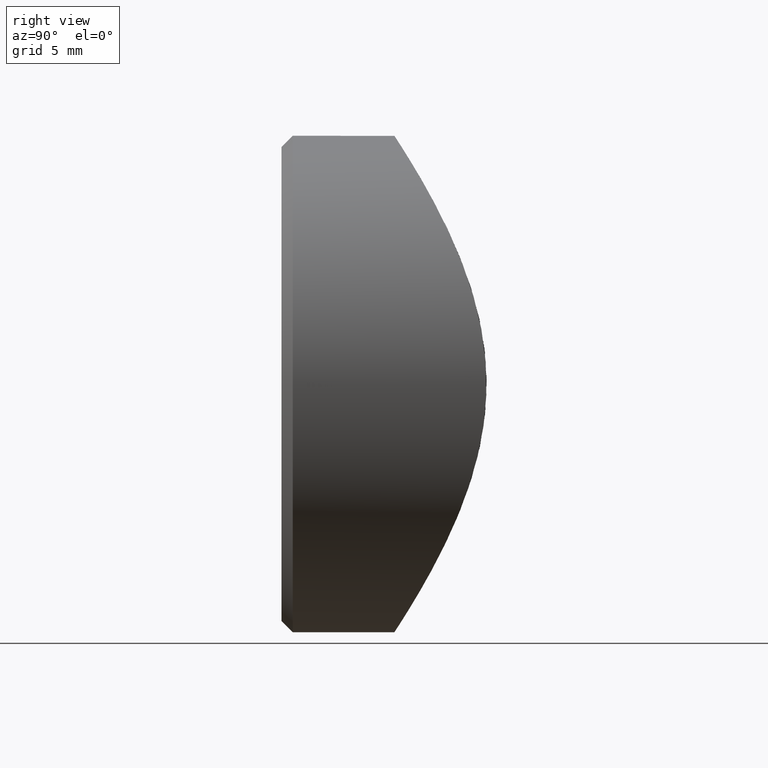
[diagram: clean part render]
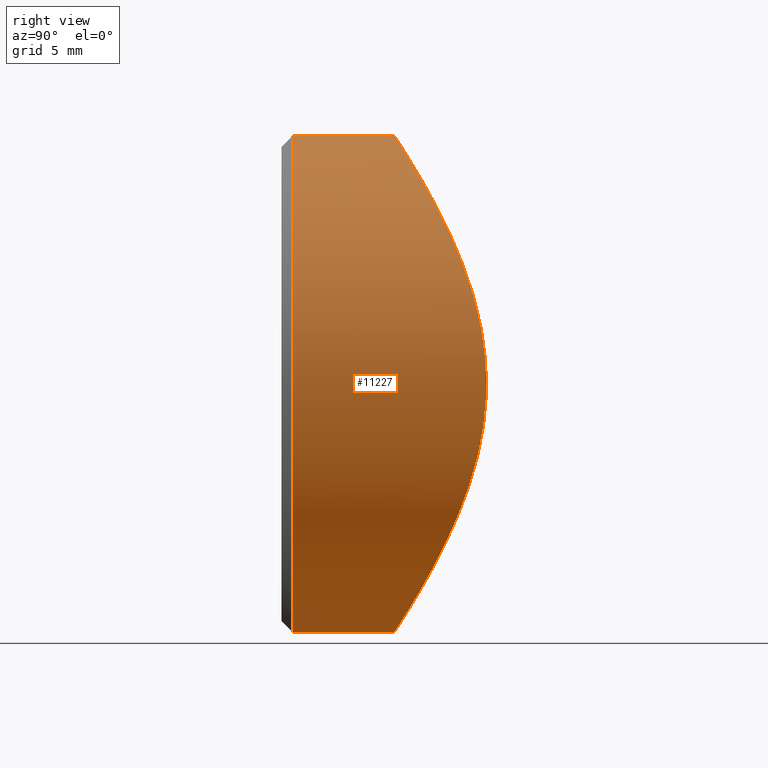
[diagram: same view with one face highlighted and labeled with its STEP entity id]
A machine part, right view. The second image highlights one B-rep face of the part: STEP entity #11227.
In plain terms, the highlighted cylindrical surface (bore or boss wall) has radius 11 mm, axis along (-0, -1, -0).
Its self-contained STEP definition (entity closure, byte-faithful):
#152 = ORIENTED_EDGE ( 'NONE', *, *, #8760, .T. ) ;
#186 = VERTEX_POINT ( 'NONE', #10917 ) ;
#253 = AXIS2_PLACEMENT_3D ( 'NONE', #12665, #2554, #539 ) ;
#321 = DIRECTION ( 'NONE',  ( -0.000000000000000000, -1.000000000000000000, -0.000000000000000000 ) ) ;
#442 = CARTESIAN_POINT ( 'NONE',  ( 11.00147673365168011, 9.087162792130904165, 0.7233661174607639577 ) ) ;
#525 = CARTESIAN_POINT ( 'NONE',  ( 10.97914079170229407, 9.067843553706508075, -0.7719686277563863053 ) ) ;
#539 = DIRECTION ( 'NONE',  ( 0.000000000000000000, 0.000000000000000000, 1.000000000000000000 ) ) ;
#568 = CARTESIAN_POINT ( 'NONE',  ( 8.271853158119190752, 7.167856615367359296, -7.259415225182106468 ) ) ;
#693 = CARTESIAN_POINT ( 'NONE',  ( 0.7644100686182936366, 5.013258329728722096, 10.97971856535322033 ) ) ;
#738 = CARTESIAN_POINT ( 'NONE',  ( -8.721407412608940035, 7.430379754294314409, -6.712598621363254914 ) ) ;
#788 = CARTESIAN_POINT ( 'NONE',  ( -3.979222950240812295, 5.473046242686328888, -10.26129690156908936 ) ) ;
#832 = CARTESIAN_POINT ( 'NONE',  ( -4.336808689942017736E-16, 5.000000000000000888, -11.00000000000000178 ) ) ;
#1355 = EDGE_LOOP ( 'NONE', ( #4503 ) ) ;
#1443 = CYLINDRICAL_SURFACE ( 'NONE', #4578, 11.00000000000000000 ) ;
#1449 = EDGE_CURVE ( 'NONE', #186, #186, #5339, .T. ) ;
#1452 = CARTESIAN_POINT ( 'NONE',  ( 5.608391915759645130, 5.957322916881540920, 9.469609686238156243 ) ) ;
#1499 = CARTESIAN_POINT ( 'NONE',  ( 1.485133899372041322, 5.049907121360512008, -10.92397613223722708 ) ) ;
#1547 = CARTESIAN_POINT ( 'NONE',  ( 9.849595998120573626, 8.177020904461517858, 4.910341427014373927 ) ) ;
#1588 = CARTESIAN_POINT ( 'NONE',  ( 8.037870899002763636, 7.038118054825750924, -7.517558724527265923 ) ) ;
#1628 = CARTESIAN_POINT ( 'NONE',  ( 4.655173631479622820, 5.652132394237600721, 9.973007815678471388 ) ) ;
#1669 = CARTESIAN_POINT ( 'NONE',  ( -8.932202788052610032, 7.560399543813056233, -6.429561344182448401 ) ) ;
#1712 = CARTESIAN_POINT ( 'NONE',  ( -11.00033837903728973, 9.086181772223106634, -0.3632649645082301482 ) ) ;
#1754 = CARTESIAN_POINT ( 'NONE',  ( -1.826353092402937639, 5.095272786596681591, 10.85364243591014777 ) ) ;
#1798 = CARTESIAN_POINT ( 'NONE',  ( -10.90629512329835471, 9.005637054752902770, -1.480111778414449741 ) ) ;
#2367 = DIRECTION ( 'NONE',  ( 0.000000000000000000, 0.000000000000000000, -1.000000000000000000 ) ) ;
#2554 = DIRECTION ( 'NONE',  ( -0.000000000000000000, 1.000000000000000000, -0.000000000000000000 ) ) ;
#2590 = CARTESIAN_POINT ( 'NONE',  ( 10.84558646482431676, 8.954068595320853419, -1.872668306533616045 ) ) ;
#2634 = CARTESIAN_POINT ( 'NONE',  ( 10.38772126486453118, 8.582100302732094121, -3.637049021949906535 ) ) ;
#2676 = CARTESIAN_POINT ( 'NONE',  ( 1.876272412462884898, 5.100816615596698078, 10.84508828891414289 ) ) ;
#2757 = CARTESIAN_POINT ( 'NONE',  ( -10.98130355359799459, 9.069706378589959428, -0.7409294546843335771 ) ) ;
#2841 = CARTESIAN_POINT ( 'NONE',  ( -6.741430861840708388, 6.404458105131103807, 8.699269972001228979 ) ) ;
#2890 = CARTESIAN_POINT ( 'NONE',  ( -10.85048377591749436, 8.958195457855980592, -1.844276531315425904 ) ) ;
#3345 = VERTEX_POINT ( 'NONE', #7828 ) ;
#3512 = CARTESIAN_POINT ( 'NONE',  ( 9.511457535842543720, 7.933476029943349772, -5.569442268279658492 ) ) ;
#3558 = CARTESIAN_POINT ( 'NONE',  ( 7.315652062314922155, 6.660682482788358172, 8.244675533813486723 ) ) ;
#3639 = CARTESIAN_POINT ( 'NONE',  ( 10.61727742485073023, 8.765099315187638851, 2.899088143766777481 ) ) ;
#3685 = CARTESIAN_POINT ( 'NONE',  ( 2.960828080299056086, 5.246140029514933190, 10.61973868413724098 ) ) ;
#3724 = CARTESIAN_POINT ( 'NONE',  ( 1.504865273602632003, 5.063232195185425333, 10.90293185504119933 ) ) ;
#3758 = CARTESIAN_POINT ( 'NONE',  ( -4.614708997319354467, 5.640540405228003706, 9.991813008618930070 ) ) ;
#3804 = CARTESIAN_POINT ( 'NONE',  ( -8.285503595212409422, 7.167272850916494242, 7.269036366407364724 ) ) ;
#3848 = CARTESIAN_POINT ( 'NONE',  ( -1.454617190870062915, 5.058817969904102263, 10.90972352767740894 ) ) ;
#4471 = CARTESIAN_POINT ( 'NONE',  ( 3.633100728870812812, 5.382037708824046973, -10.40768502285954078 ) ) ;
#4503 = ORIENTED_EDGE ( 'NONE', *, *, #1449, .T. ) ;
#4516 = CARTESIAN_POINT ( 'NONE',  ( 7.301134405833831664, 6.653855825400737167, -8.256976895387072801 ) ) ;
#4557 = CARTESIAN_POINT ( 'NONE',  ( 4.982277000668911882, 5.750057123155922767, 9.813484772447516491 ) ) ;
#4578 = AXIS2_PLACEMENT_3D ( 'NONE', #5343, #321, #2367 ) ;
#4641 = CARTESIAN_POINT ( 'NONE',  ( 4.959899927886489479, 5.731917122837889345, -9.844730628439158693 ) ) ;
#4687 = CARTESIAN_POINT ( 'NONE',  ( -2.580225336392250490, 5.194703101346364704, -10.69951732917235709 ) ) ;
#4728 = CARTESIAN_POINT ( 'NONE',  ( -9.836500333523387596, 8.167583944762812465, 4.936520058658256715 ) ) ;
#4773 = CARTESIAN_POINT ( 'NONE',  ( -7.553932720027012770, 6.785563858566972861, -8.003698741213295165 ) ) ;
#4819 = CARTESIAN_POINT ( 'NONE',  ( -9.520495859177160014, 7.939558958365037888, -5.554654039397104448 ) ) ;
#5225 = FACE_OUTER_BOUND ( 'NONE', #7016, .T. ) ;
#5339 = B_SPLINE_CURVE_WITH_KNOTS ( 'NONE', 3,
 ( #12531, #12569, #1499, #12610, #4471, #4641, #9503, #6564, #4516, #1588, #568, #5468, #7637, #3512, #8619, #6471, #2634, #5641, #9679, #2590, #9640, #525, #7589, #442, #9595, #6656, #3639, #10636, #11641, #12657, #1547, #8582, #7548, #7684, #8541, #3558, #10552, #7507, #1452, #4557, #1628, #8660, #3685, #2676, #3724, #693, #8783, #6739, #3848, #1754, #5816, #8739, #3758, #12698, #10848, #11687, #7764, #2841, #5777, #7723, #3804, #9809, #9852, #10713, #4728, #9764, #7849, #10803, #11732, #11772, #12787, #6786, #1712, #2757, #1798, #2890, #10756, #8699, #5728, #4819, #1669, #738, #12743, #7805, #4773, #11817, #10674, #11867, #12833, #6829, #788, #8823, #5861, #4687, #12876, #6872, #832 ),
 .UNSPECIFIED., .T., .F.,
 ( 4, 2, 2, 2, 2, 2, 2, 2, 2, 2, 2, 2, 2, 2, 2, 2, 2, 2, 2, 2, 2, 2, 2, 1, 2, 2, 2, 2, 2, 2, 2, 2, 2, 2, 2, 2, 2, 2, 2, 2, 2, 2, 2, 2, 2, 2, 2, 2, 4 ),
 ( 0.000000000000000000, 0.002216536556375939531, 0.004433073112751878195, 0.006649609669127817292, 0.008866146225503754655, 0.009974414503691721168, 0.01108268278187968942, 0.01329921933825562938, 0.01440748761644359763, 0.01551575589463156414, 0.01662402417281953412, 0.01773229245100750237, 0.01994882900738343540, 0.02105709728557140017, 0.02216536556375936842, 0.02327363384194734014, 0.02438190212013530839, 0.02659843867651124835, 0.02881497523288718832, 0.02992324351107515656, 0.03103151178926312481, 0.03324804834563906825, 0.03435631662382703649, 0.03546458490201500474, 0.03657285318020297299, 0.03768112145839094124, 0.03989765801476687773, 0.04100592629295485292, 0.04211419457114282117, 0.04322246284933078941, 0.04433073112751875766, 0.04654726768389470110, 0.04765553596208267628, 0.04876380424027064453, 0.04987207251845861278, 0.05098034079664658103, 0.05319687735302251752, 0.05430514563121049271, 0.05541341390939846095, 0.05762995046577439745, 0.05984648702215033395, 0.06095475530033830219, 0.06206302357852627738, 0.06317129185671424563, 0.06427956013490222775, 0.06649609669127816425, 0.06760436496946613250, 0.06871263324765410074, 0.07092916980403003724 ),
 .UNSPECIFIED. ) ;
#5343 = CARTESIAN_POINT ( 'NONE',  ( 0.000000000000000000, 12.00000000000000000, 0.000000000000000000 ) ) ;
#5468 = CARTESIAN_POINT ( 'NONE',  ( 8.716902828914264489, 7.427639093835402662, -6.718502002110187554 ) ) ;
#5641 = CARTESIAN_POINT ( 'NONE',  ( 10.60572074159177625, 8.755703416958560581, -2.941354486619312425 ) ) ;
#5728 = CARTESIAN_POINT ( 'NONE',  ( -9.855279488851429903, 8.178262032274520976, -4.937716990743689749 ) ) ;
#5777 = CARTESIAN_POINT ( 'NONE',  ( -7.284426678494067886, 6.653000873304871554, 8.249928246741575322 ) ) ;
#5816 = CARTESIAN_POINT ( 'NONE',  ( -2.915020249404118413, 5.237927420086483821, 10.63255077224845024 ) ) ;
#5861 = CARTESIAN_POINT ( 'NONE',  ( -2.941566920718147404, 5.254925001785757388, -10.60571394390164102 ) ) ;
#6471 = CARTESIAN_POINT ( 'NONE',  ( 10.26262713633574464, 8.484701556523599919, -3.975513289644990955 ) ) ;
#6564 = CARTESIAN_POINT ( 'NONE',  ( 6.764044099949251709, 6.404249426920525678, -8.703710818116736192 ) ) ;
#6656 = CARTESIAN_POINT ( 'NONE',  ( 10.70864332195800550, 8.840138000205753244, 2.541852564488696231 ) ) ;
#6739 = CARTESIAN_POINT ( 'NONE',  ( -0.7153303046586351188, 5.011116198066245531, 10.98299964388462158 ) ) ;
#6786 = CARTESIAN_POINT ( 'NONE',  ( -10.99930931533083722, 9.085294934630198327, 0.7568474989823347210 ) ) ;
#6829 = CARTESIAN_POINT ( 'NONE',  ( -4.968414855230119720, 5.734706876572710499, -9.840150983893835246 ) ) ;
#6872 = CARTESIAN_POINT ( 'NONE',  ( -0.7507683726778662248, 5.000000000000000000, -11.00000000000000178 ) ) ;
#7016 = EDGE_LOOP ( 'NONE', ( #152 ) ) ;
#7278 = FACE_OUTER_BOUND ( 'NONE', #1355, .T. ) ;
#7507 = CARTESIAN_POINT ( 'NONE',  ( 5.909494440298757922, 6.067171976662744548, 9.284457258774441613 ) ) ;
#7548 = CARTESIAN_POINT ( 'NONE',  ( 9.330801774008744331, 7.817455174999243361, 5.835950222374487240 ) ) ;
#7589 = CARTESIAN_POINT ( 'NONE',  ( 10.99922827810071624, 9.085225099315646702, -0.3948601036720749136 ) ) ;
#7637 = CARTESIAN_POINT ( 'NONE',  ( 8.926710927453168409, 7.556992164557787106, -6.437038133073865076 ) ) ;
#7684 = CARTESIAN_POINT ( 'NONE',  ( 8.746794337519201434, 7.440600537734286313, 6.706884208979032813 ) ) ;
#7723 = CARTESIAN_POINT ( 'NONE',  ( -7.545548604704809037, 6.781337722139528346, 8.011667188210264356 ) ) ;
#7764 = CARTESIAN_POINT ( 'NONE',  ( -6.459638148417056414, 6.284193202656791932, 8.910545585451622230 ) ) ;
#7805 = CARTESIAN_POINT ( 'NONE',  ( -8.044715085741909633, 7.041836880043331526, -7.510236498808185779 ) ) ;
#7828 = CARTESIAN_POINT ( 'NONE',  ( 0.000000000000000000, 0.5000000000000004441, 11.00000000000000000 ) ) ;
#7849 = CARTESIAN_POINT ( 'NONE',  ( -10.26812297264530649, 8.488925286008342397, 3.961358687142380930 ) ) ;
#8541 = CARTESIAN_POINT ( 'NONE',  ( 8.304949993081487847, 7.178192430789559708, 7.247154294420063536 ) ) ;
#8582 = CARTESIAN_POINT ( 'NONE',  ( 9.512533142088988924, 7.940412950274774673, 5.535133916781504126 ) ) ;
#8619 = CARTESIAN_POINT ( 'NONE',  ( 9.845743341868077536, 8.171377593607967782, -4.956432655494849016 ) ) ;
#8660 = CARTESIAN_POINT ( 'NONE',  ( 3.654662141629759109, 5.386641573401306005, 10.40045914148816131 ) ) ;
#8699 = CARTESIAN_POINT ( 'NONE',  ( -10.40988173560740293, 8.595668062395990461, -3.625182082974864883 ) ) ;
#8739 = CARTESIAN_POINT ( 'NONE',  ( -3.611160533463885880, 5.376976672768988053, 10.41570856534198874 ) ) ;
#8760 = EDGE_CURVE ( 'NONE', #3345, #3345, #10572, .T. ) ;
#8783 = CARTESIAN_POINT ( 'NONE',  ( 0.02424966016864759516, 4.987847963461305767, 11.01858707459811981 ) ) ;
#8823 = CARTESIAN_POINT ( 'NONE',  ( -3.640115336725481932, 5.394031767144340073, -10.38670036846490241 ) ) ;
#9503 = CARTESIAN_POINT ( 'NONE',  ( 5.585652857414963535, 5.940129305733020004, -9.503018296726185810 ) ) ;
#9595 = CARTESIAN_POINT ( 'NONE',  ( 10.92797766623028544, 9.022763028274702890, 1.457233389826840142 ) ) ;
#9640 = CARTESIAN_POINT ( 'NONE',  ( 10.90224128204674159, 9.002191199680023459, -1.509504261105993672 ) ) ;
#9679 = CARTESIAN_POINT ( 'NONE',  ( 10.69732754913496287, 8.830822765370747618, -2.588593374555792082 ) ) ;
#9764 = CARTESIAN_POINT ( 'NONE',  ( -9.990524283463596333, 8.280103484707126427, 4.616940174085951476 ) ) ;
#9809 = CARTESIAN_POINT ( 'NONE',  ( -8.726552824086979854, 7.428261475503902034, 6.733289382384973543 ) ) ;
#9852 = CARTESIAN_POINT ( 'NONE',  ( -9.313840428239689828, 7.806173312005851628, 5.863007249007763377 ) ) ;
#10552 = CARTESIAN_POINT ( 'NONE',  ( 6.779575482920646046, 6.411444494771281200, 8.690825092654144157 ) ) ;
#10572 = CIRCLE ( 'NONE', #253, 11.00000000000000000 ) ;
#10636 = CARTESIAN_POINT ( 'NONE',  ( 10.40347552724886349, 8.594476517255829506, 3.591516244639320732 ) ) ;
#10674 = CARTESIAN_POINT ( 'NONE',  ( -6.756436196695569940, 6.411044343526960176, -8.687564064565549415 ) ) ;
#10713 = CARTESIAN_POINT ( 'NONE',  ( -9.497812760940373522, 7.930344807498416415, 5.560352673982040805 ) ) ;
#10756 = CARTESIAN_POINT ( 'NONE',  ( -10.63021870348437758, 8.774930577114808727, -2.921620560190825167 ) ) ;
#10803 = CARTESIAN_POINT ( 'NONE',  ( -10.39170200725827087, 8.585233484695564243, 3.625360462261127736 ) ) ;
#10848 = CARTESIAN_POINT ( 'NONE',  ( -5.571575669288107768, 5.944351772527301847, 9.491351967068434092 ) ) ;
#10917 = CARTESIAN_POINT ( 'NONE',  ( 0.000000000000000000, 5.000000000000000888, -11.00000000000000000 ) ) ;
#11227 = ADVANCED_FACE ( 'NONE', ( #5225, #7278 ), #1443, .T. ) ;
#11641 = CARTESIAN_POINT ( 'NONE',  ( 10.28062270839939352, 8.498547047495234708, 3.928924558528332334 ) ) ;
#11687 = CARTESIAN_POINT ( 'NONE',  ( -5.874708708476746644, 6.054144092476394512, 9.306586121099604370 ) ) ;
#11732 = CARTESIAN_POINT ( 'NONE',  ( -10.60732753067228806, 8.757020813801052128, 2.935185129770079726 ) ) ;
#11772 = CARTESIAN_POINT ( 'NONE',  ( -10.69972316837116288, 8.832787212748989703, 2.579301249832983256 ) ) ;
#11817 = CARTESIAN_POINT ( 'NONE',  ( -7.296548834809511774, 6.658846095710871715, -8.239148897622175838 ) ) ;
#11867 = CARTESIAN_POINT ( 'NONE',  ( -6.472089030747517846, 6.289334642898526617, -8.901583151177064224 ) ) ;
#12531 = CARTESIAN_POINT ( 'NONE',  ( -4.336808689942017736E-16, 5.000000000000000888, -11.00000000000000178 ) ) ;
#12569 = CARTESIAN_POINT ( 'NONE',  ( 0.7507683726778653366, 5.000000000000000888, -11.00000000000000178 ) ) ;
#12610 = CARTESIAN_POINT ( 'NONE',  ( 2.923518122635913929, 5.239708454798373438, -10.62976570877138371 ) ) ;
#12657 = CARTESIAN_POINT ( 'NONE',  ( 10.00399762830089223, 8.290039429690226669, 4.587775377240518537 ) ) ;
#12665 = CARTESIAN_POINT ( 'NONE',  ( 0.000000000000000000, 0.5000000000000004441, 0.000000000000000000 ) ) ;
#12698 = CARTESIAN_POINT ( 'NONE',  ( -4.942504524076424488, 5.737776379276738226, 9.833609033862449778 ) ) ;
#12743 = CARTESIAN_POINT ( 'NONE',  ( -8.278111546149359512, 7.171401139189607754, -7.252227019181536782 ) ) ;
#12787 = CARTESIAN_POINT ( 'NONE',  ( -10.92340792796964521, 9.018816198317122002, 1.492193857327010598 ) ) ;
#12833 = CARTESIAN_POINT ( 'NONE',  ( -5.590613590979608638, 5.941935668132495074, -9.499974513298496959 ) ) ;
#12876 = CARTESIAN_POINT ( 'NONE',  ( -1.491686426827466549, 5.050199945253324607, -10.92354370427924337 ) ) ;